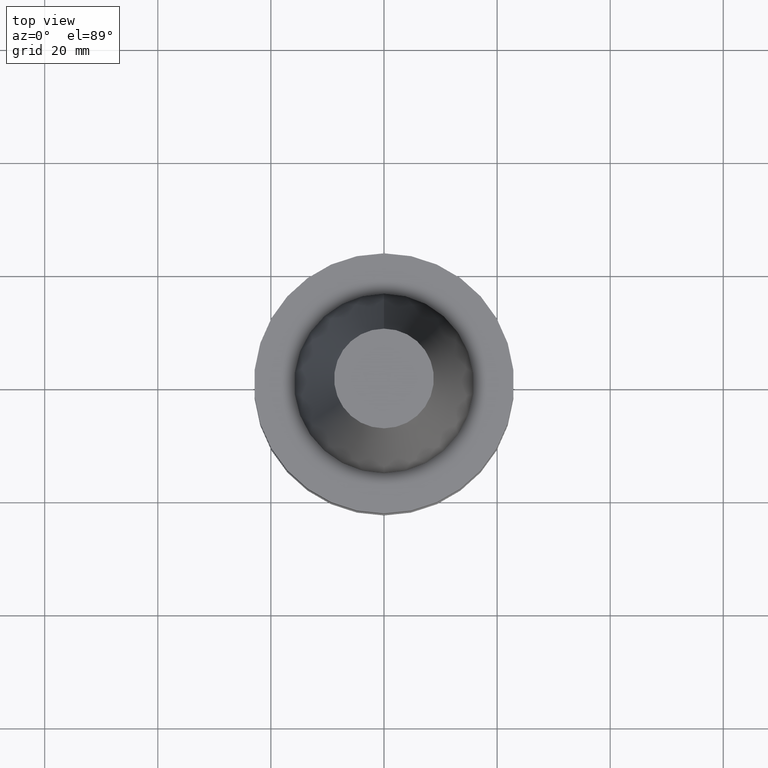
[diagram: clean part render]
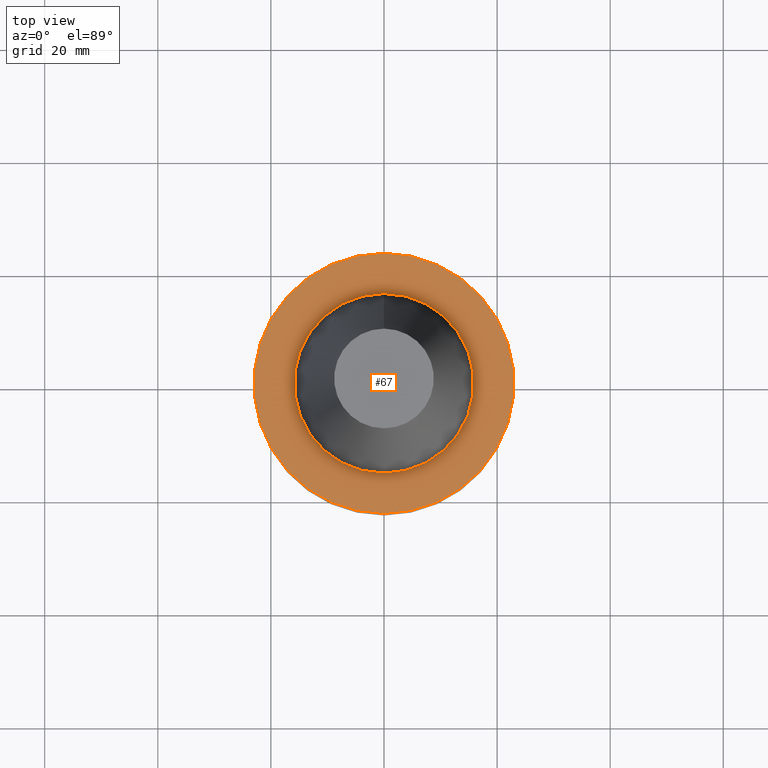
[diagram: same view with one face highlighted and labeled with its STEP entity id]
A machine part, top view. The second image highlights one B-rep face of the part: STEP entity #67.
In plain terms, the highlighted planar face has unit normal (-0, -0, 1).
Its self-contained STEP definition (entity closure, byte-faithful):
#67=ADVANCED_FACE('Unnamed[1]',(#170,#171),#172,.T.);
#109=EDGE_CURVE('Unnamed[1]',#238,#238,#239,.T.);
#116=EDGE_CURVE('Unnamed[1]',#248,#248,#249,.T.);
#170=FACE_OUTER_BOUND('',#307,.T.);
#171=FACE_BOUND('',#308,.T.);
#172=PLANE('',#309);
#238=VERTEX_POINT('',#391);
#239=CIRCLE('',#392,15.875);
#248=VERTEX_POINT('',#404);
#249=CIRCLE('',#405,23.0);
#307=EDGE_LOOP('',(#461));
#308=EDGE_LOOP('',(#462));
#309=AXIS2_PLACEMENT_3D('',#463,#464,#465);
#391=CARTESIAN_POINT('',(6.12323399573675E-017,15.875,-0.999999999999998));
#392=AXIS2_PLACEMENT_3D('',#540,#541,#542);
#404=CARTESIAN_POINT('',(6.12323399573674E-017,23.0,-0.999999999999997));
#405=AXIS2_PLACEMENT_3D('',#551,#552,#553);
#461=ORIENTED_EDGE('',*,*,#116,.F.);
#462=ORIENTED_EDGE('',*,*,#109,.T.);
#463=CARTESIAN_POINT('',(6.12323399573674E-017,19.4375,-0.999999999999998));
#464=DIRECTION('',(-6.12323399573677E-017,-1.22464679914735E-016,1.0));
#465=DIRECTION('',(1.23259516440783E-032,-1.0,-1.22464679914735E-016));
#540=CARTESIAN_POINT('',(6.12323399573677E-017,1.22464679914735E-016,-1.0));
#541=DIRECTION('',(6.12323399573677E-017,1.22464679914714E-016,-1.0));
#542=DIRECTION('',(-1.23259516440783E-032,1.0,1.22464679914714E-016));
#551=CARTESIAN_POINT('',(6.12323399573677E-017,1.22464679914735E-016,-1.0));
#552=DIRECTION('',(6.12323399573677E-017,1.22464679914716E-016,-1.0));
#553=DIRECTION('',(-1.23259516440783E-032,1.0,1.22464679914716E-016));